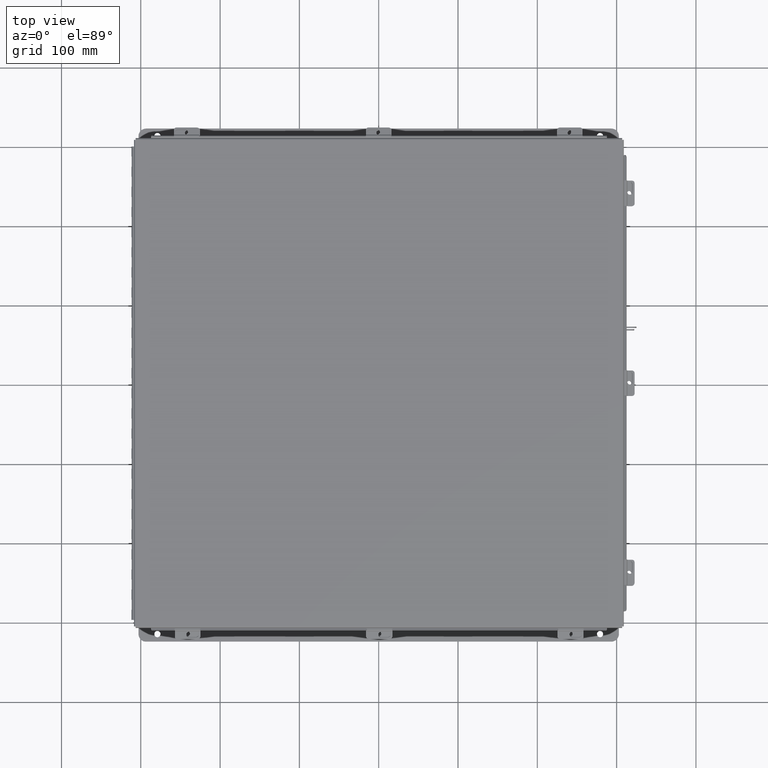
[diagram: clean part render]
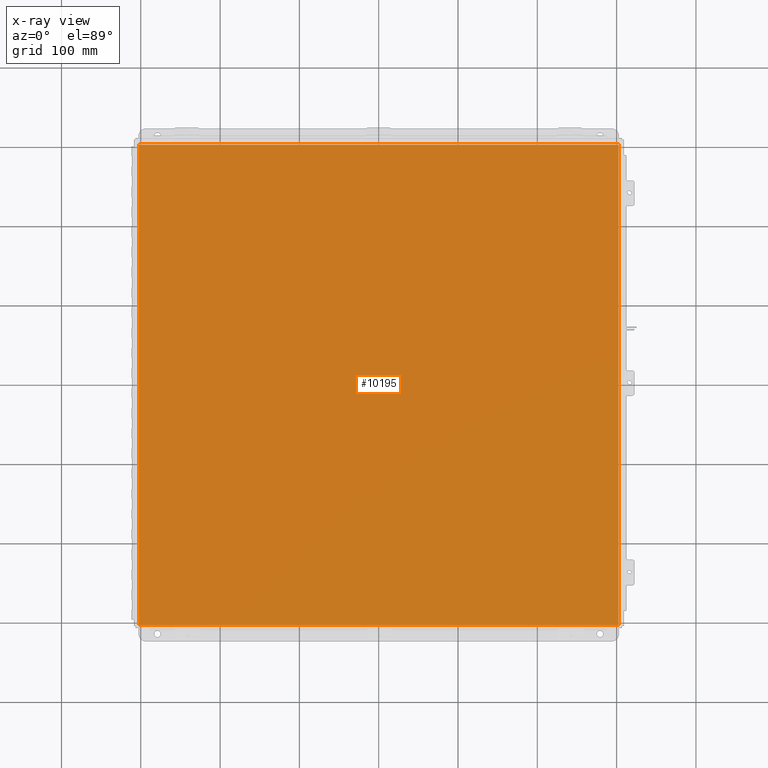
[diagram: x-ray — body ghosted, one internal face saturated and labeled with its STEP entity id]
A machine part, top view, then the same camera in x-ray: the body is ghosted and one INTERNAL B-rep face — a face not visible from any outside direction — is saturated and labeled: STEP entity #10195.
In plain terms, the highlighted planar face has unit normal (0, 0, -1).
Its self-contained STEP definition (entity closure, byte-faithful):
#733 = EDGE_CURVE ( 'NONE', #9043, #18565, #6591, .T. ) ;
#2536 = DIRECTION ( 'NONE',  ( -0.0000000000000000000, -1.000000000000000000, -0.0000000000000000000 ) ) ;
#2539 = DIRECTION ( 'NONE',  ( -0.0000000000000000000, 1.000000000000000000, -0.0000000000000000000 ) ) ;
#2645 = CARTESIAN_POINT ( 'NONE',  ( -11.91230000000000000, -11.92530000000000000, 4.268512490100411300E-017 ) ) ;
#4565 = ORIENTED_EDGE ( 'NONE', *, *, #19660, .F. ) ;
#6591 = LINE ( 'NONE', #2645, #6948 ) ;
#6818 = VERTEX_POINT ( 'NONE', #21250 ) ;
#6948 = VECTOR ( 'NONE', #2539, 39.37007874015748100 ) ;
#8607 = ORIENTED_EDGE ( 'NONE', *, *, #733, .F. ) ;
#9043 = VERTEX_POINT ( 'NONE', #21664 ) ;
#9175 = AXIS2_PLACEMENT_3D ( 'NONE', #13831, #13584, #13501 ) ;
#10195 = ADVANCED_FACE ( 'NONE', ( #17964 ), #15254, .F. ) ;
#11587 = CARTESIAN_POINT ( 'NONE',  ( -12.00000000000000200, -11.92530000000000000, 0.0000000000000000000 ) ) ;
#13441 = EDGE_CURVE ( 'NONE', #6818, #18565, #15135, .T. ) ;
#13501 = DIRECTION ( 'NONE',  ( -1.000000000000000000, 0.0000000000000000000, -0.0000000000000000000 ) ) ;
#13584 = DIRECTION ( 'NONE',  ( 0.0000000000000000000, 0.0000000000000000000, -1.000000000000000000 ) ) ;
#13831 = CARTESIAN_POINT ( 'NONE',  ( 0.0000000000000000000, 0.0000000000000000000, 0.0000000000000000000 ) ) ;
#15030 = VECTOR ( 'NONE', #19611, 39.37007874015748100 ) ;
#15135 = LINE ( 'NONE', #19375, #15030 ) ;
#15254 = PLANE ( 'NONE',  #9175 ) ;
#16945 = DIRECTION ( 'NONE',  ( 1.000000000000000000, 0.0000000000000000000, 0.0000000000000000000 ) ) ;
#17964 = FACE_OUTER_BOUND ( 'NONE', #24318, .T. ) ;
#18245 = CARTESIAN_POINT ( 'NONE',  ( -11.91230000000000000, 11.92530000000000000, 4.268512490100411300E-017 ) ) ;
#18565 = VERTEX_POINT ( 'NONE', #18245 ) ;
#19375 = CARTESIAN_POINT ( 'NONE',  ( -12.00000000000000200, 11.92530000000000000, 0.0000000000000000000 ) ) ;
#19611 = DIRECTION ( 'NONE',  ( -1.000000000000000000, -0.0000000000000000000, -0.0000000000000000000 ) ) ;
#19660 = EDGE_CURVE ( 'NONE', #6818, #19882, #24349, .T. ) ;
#19882 = VERTEX_POINT ( 'NONE', #22063 ) ;
#20418 = ORIENTED_EDGE ( 'NONE', *, *, #13441, .T. ) ;
#20929 = ORIENTED_EDGE ( 'NONE', *, *, #24417, .T. ) ;
#21250 = CARTESIAN_POINT ( 'NONE',  ( 11.91230000000000000, 11.92529999999999800, 4.268512490100411300E-017 ) ) ;
#21375 = VECTOR ( 'NONE', #16945, 39.37007874015748100 ) ;
#21494 = LINE ( 'NONE', #11587, #21375 ) ;
#21664 = CARTESIAN_POINT ( 'NONE',  ( -11.91230000000000000, -11.92529999999999800, 4.268512490100411300E-017 ) ) ;
#22063 = CARTESIAN_POINT ( 'NONE',  ( 11.91230000000000000, -11.92530000000000000, 4.268512490100411300E-017 ) ) ;
#23189 = CARTESIAN_POINT ( 'NONE',  ( 11.91230000000000000, 11.92530000000000000, 4.268512490100411300E-017 ) ) ;
#24144 = VECTOR ( 'NONE', #2536, 39.37007874015748100 ) ;
#24318 = EDGE_LOOP ( 'NONE', ( #4565, #20418, #8607, #20929 ) ) ;
#24349 = LINE ( 'NONE', #23189, #24144 ) ;
#24417 = EDGE_CURVE ( 'NONE', #9043, #19882, #21494, .T. ) ;